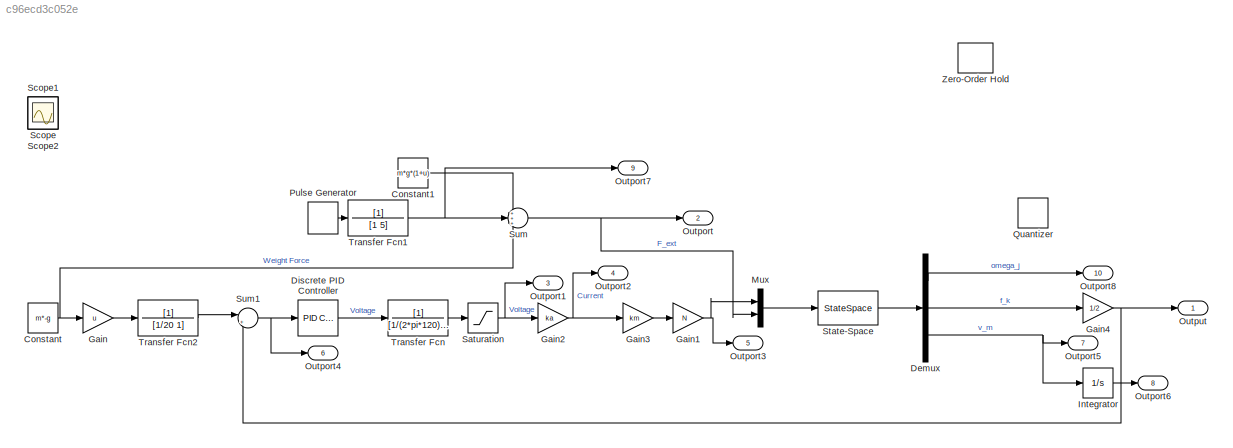
MODEL slx_c96ecd3c052e
KIND model
CONFIG AbsTol = auto
CONFIG EnableMultiTasking = off
CONFIG FixedStep = auto
CONFIG MaxStep = auto
CONFIG MinStep = auto
CONFIG RelTol = 1e-3
CONFIG SampleTimeConstraint = Unconstrained
CONFIG SolverName = VariableStepAuto
CONFIG StartTime = 0.0
CONFIG StopTime = 10.0
BLOCK [Constant] Constant
  Value = m*-g
BLOCK [Constant] Constant1
  Value = m*g*(1+u)
BLOCK [Demux] Demux
  Outputs = 3
BLOCK [Reference] Discrete PID Controller  REF=slpidlib/PID Controller
  LibrarySourceBlock = simulink/Discrete/Discrete PID Controller
  SourceBlock = slpidlib/PID Controller
  SourceType = PID 1dof
BLOCK [Gain] Gain
  Gain = u
BLOCK [Gain] Gain1
  Gain = N
BLOCK [Gain] Gain2
  Gain = ka
  NameLocation = top
BLOCK [Gain] Gain3
  Gain = km
  NameLocation = top
BLOCK [Gain] Gain4
  Gain = 1/2
BLOCK [Integrator] Integrator
BLOCK [Mux] Mux
  DisplayOption = bar
  Inputs = 2
BLOCK [Outport] Outport
  Port = 2
BLOCK [Outport] Outport1
  Port = 3
BLOCK [Outport] Outport2
  Port = 4
BLOCK [Outport] Outport3
  Port = 5
BLOCK [Outport] Outport4
  Port = 6
BLOCK [Outport] Outport5
  Port = 7
BLOCK [Outport] Outport6
  Port = 8
BLOCK [Outport] Outport7
  Port = 9
BLOCK [Outport] Outport8
  Port = 10
BLOCK [Outport] Output
BLOCK [DiscretePulseGenerator] Pulse Generator
  Amplitude = 5
  Period = 10
  PulseType = Time based
  PulseWidth = 30
BLOCK [Quantizer] Quantizer
  QuantizationInterval = .0126
BLOCK [Saturate] Saturation
  LowerLimit = -7.5
  UpperLimit = 7.5
BLOCK [Scope] Scope
  Floating = off
  IOType = viewer
  NumInputPorts = 1
  ScopeSpecificationString = Simulink.scopes.TimeScopeBlockCfg('CurrentConfiguration', extmgr.ConfigurationSet(extmgr.Configuration('Core','General UI',true),extmgr.Configuration('Core','Source UI',true),extmgr.Configuration('Sources','WiredSimulink',true),extmgr.Configuration('Visuals','Time Domain',true,'SerializedDisplays',{struct('MinYLimReal','-13558.81721','MaxYLimReal','13603.63247','YLabelReal','','MinYLimMag','   0.0...<+1382ch>
BLOCK [Scope] Scope1
  Floating = off
  IOType = viewer
  NumInputPorts = 1
  ScopeSpecificationString = Simulink.scopes.TimeScopeBlockCfg('CurrentConfiguration', extmgr.ConfigurationSet(extmgr.Configuration('Core','General UI',true),extmgr.Configuration('Core','Source UI',true),extmgr.Configuration('Sources','WiredSimulink',true,'DataLoggingVariableName','ScopeData1'),extmgr.Configuration('Visuals','Time Domain',true,'SerializedDisplays',{struct('MinYLimReal','-30.35511','MaxYLimReal','63.95636','YL...<+1437ch>
BLOCK [Scope] Scope2
  Floating = off
  IOType = viewer
  NumInputPorts = 1
  ScopeSpecificationString = Simulink.scopes.TimeScopeBlockCfg('CurrentConfiguration', extmgr.ConfigurationSet(extmgr.Configuration('Core','General UI',true),extmgr.Configuration('Core','Source UI',true),extmgr.Configuration('Sources','WiredSimulink',true,'DataLoggingVariableName','ScopeData1'),extmgr.Configuration('Visuals','Time Domain',true,'SerializedDisplays',{struct('MinYLimReal','-8.954','MaxYLimReal','-7.704','YLabelR...<+1409ch>
BLOCK [StateSpace] State-Space
  A = A
  B = B
  C = C2
  D = D2
  InitialCondition = x0
BLOCK [Sum] Sum
  Inputs = +++
BLOCK [Sum] Sum1
  Inputs = |+-
BLOCK [TransferFcn] Transfer Fcn
  Denominator = [1/(2*pi*120) 1]
BLOCK [TransferFcn] Transfer Fcn1
  Denominator = [1 5]
BLOCK [TransferFcn] Transfer Fcn2
  Denominator = [1/20 1]
BLOCK [ZeroOrderHold] Zero-Order Hold
  SampleTime = BTI
LINE Constant1:1 -> Sum:1
NET Constant:1 -> Gain:1, Sum:3
LINE Demux:1 -> Outport8:1
LINE Demux:2 -> Gain4:1
NET Demux:3 -> Integrator:1, Outport5:1
LINE Discrete PID Controller:1 -> Transfer Fcn:1
NET Gain1:1 -> Mux:1, Outport3:1
NET Gain2:1 -> Gain3:1, Outport2:1
LINE Gain3:1 -> Gain1:1
NET Gain4:1 -> Output:1, Sum1:2
LINE Gain:1 -> Transfer Fcn2:1
LINE Integrator:1 -> Outport6:1
LINE Mux:1 -> State-Space:1
LINE Pulse Generator:1 -> Transfer Fcn1:1
NET Saturation:1 -> Gain2:1, Outport1:1
LINE State-Space:1 -> Demux:1
NET Sum1:1 -> Discrete PID Controller:1, Outport4:1
NET Sum:1 -> Mux:2, Outport:1
NET Transfer Fcn1:1 -> Outport7:1, Sum:2
LINE Transfer Fcn2:1 -> Sum1:1
LINE Transfer Fcn:1 -> Saturation:1
note: NET lines group one-source signal fan-out (src -> all destinations, sorted); 1:1 wires keep LINE
